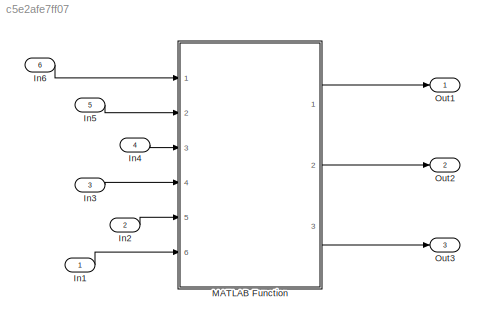
MODEL slx_c5e2afe7ff07
KIND model
CONFIG AbsTol = auto
CONFIG EnableMultiTasking = off
CONFIG FixedStep = auto
CONFIG MaxStep = auto
CONFIG MinStep = auto
CONFIG RelTol = 1e-3
CONFIG SampleTimeConstraint = Unconstrained
CONFIG Solver = VariableStepAuto
CONFIG SolverName = VariableStepAuto
CONFIG StartTime = 0.0
CONFIG StopTime = 10.0
BLOCK [Inport] In1
  IconDisplay = Port number
  OutDataTypeStr = double
  PortDimensions = 1
BLOCK [Inport] In2
  IconDisplay = Port number
  OutDataTypeStr = double
  Port = 2
  PortDimensions = 1
BLOCK [Inport] In3
  IconDisplay = Port number
  OutDataTypeStr = double
  Port = 3
  PortDimensions = 1
BLOCK [Inport] In4
  IconDisplay = Port number
  OutDataTypeStr = double
  Port = 4
  PortDimensions = 1
BLOCK [Inport] In5
  IconDisplay = Port number
  OutDataTypeStr = double
  Port = 5
  PortDimensions = 3
BLOCK [Inport] In6
  IconDisplay = Port number
  OutDataTypeStr = double
  Port = 6
  PortDimensions = [3,3]
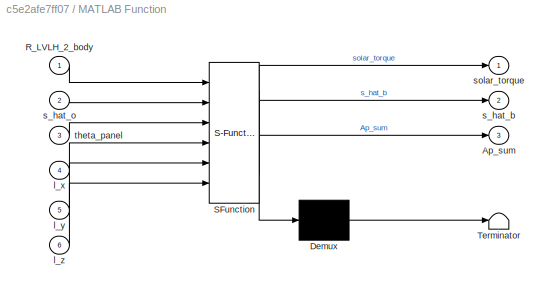
BLOCK [SubSystem] MATLAB Function
  ErrorFcn = Stateflow.Translate.translate
  PermitHierarchicalResolution = ExplicitOnly
  Ports = [6, 3]
  RequestExecContextInheritance = off
  SFBlockType = MATLAB Function
  TreatAsAtomicUnit = on
  Variant = off
BLOCK [Demux] MATLAB Function/ Demux 
  Outputs = 1
  Ports = [1, 1]
BLOCK [S-Function] MATLAB Function/ SFunction 
  EnableBusSupport = off
  FunctionName = sf_sfun
  PortCounts = [6 4]
  Ports = [6, 4]
  SFcnIsStateOwnerBlock = off
  SFunctionDeploymentMode = off
  Tag = Stateflow S-Function bio_matfunc_srp_torque_var 2
BLOCK [Terminator] MATLAB Function/ Terminator 
BLOCK [Outport] MATLAB Function/Ap_sum
  IconDisplay = Port number
  Port = 3
BLOCK [Inport] MATLAB Function/R_LVLH_2_body
  IconDisplay = Port number
BLOCK [Inport] MATLAB Function/l_x
  IconDisplay = Port number
  Port = 4
BLOCK [Inport] MATLAB Function/l_y
  IconDisplay = Port number
  Port = 5
BLOCK [Inport] MATLAB Function/l_z
  IconDisplay = Port number
  Port = 6
BLOCK [Outport] MATLAB Function/s_hat_b
  IconDisplay = Port number
  Port = 2
BLOCK [Inport] MATLAB Function/s_hat_o
  IconDisplay = Port number
  Port = 2
BLOCK [Outport] MATLAB Function/solar_torque
  IconDisplay = Port number
BLOCK [Inport] MATLAB Function/theta_panel
  IconDisplay = Port number
  Port = 3
BLOCK [Outport] Out1
  IconDisplay = Port number
BLOCK [Outport] Out2
  IconDisplay = Port number
  Port = 2
BLOCK [Outport] Out3
  IconDisplay = Port number
  Port = 3
LINE In1:1 -> MATLAB Function:6
LINE In2:1 -> MATLAB Function:5
LINE In3:1 -> MATLAB Function:4
LINE In4:1 -> MATLAB Function:3
LINE In5:1 -> MATLAB Function:2
LINE In6:1 -> MATLAB Function:1
LINE MATLAB Function:1 -> Out1:1
LINE MATLAB Function:2 -> Out2:1
LINE MATLAB Function:3 -> Out3:1
CHART MATLAB Function states=1 transitions=1
  STATE_LABEL 'eML_blk_kernel()'
  STATE_LABEL 'SCRIPT:\n% function [solar_torque,s_hat_b] = srp_torque_var(R_LVLH_2_body,s_hat_o,theta_panel,l_x,l_y,l_z)\n% %#codegen\n% \n% Rob = R_LVLH_2_body;\n% % this function calculates solar torque for a variable panel configuration\n% % where the solar panels can rotate about the spacecraft y-axis\n% % theta_panel is the angle in degrees that the panels are rotated from the\n% % z axis -- i.e. theta_panel = 0 w...<+3608ch>'
